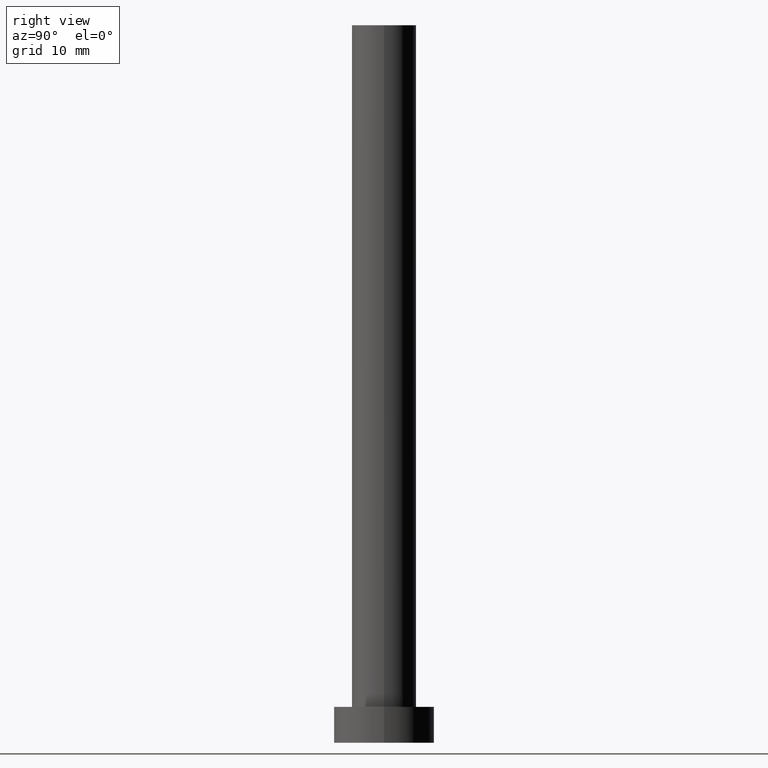
[diagram: clean part render]
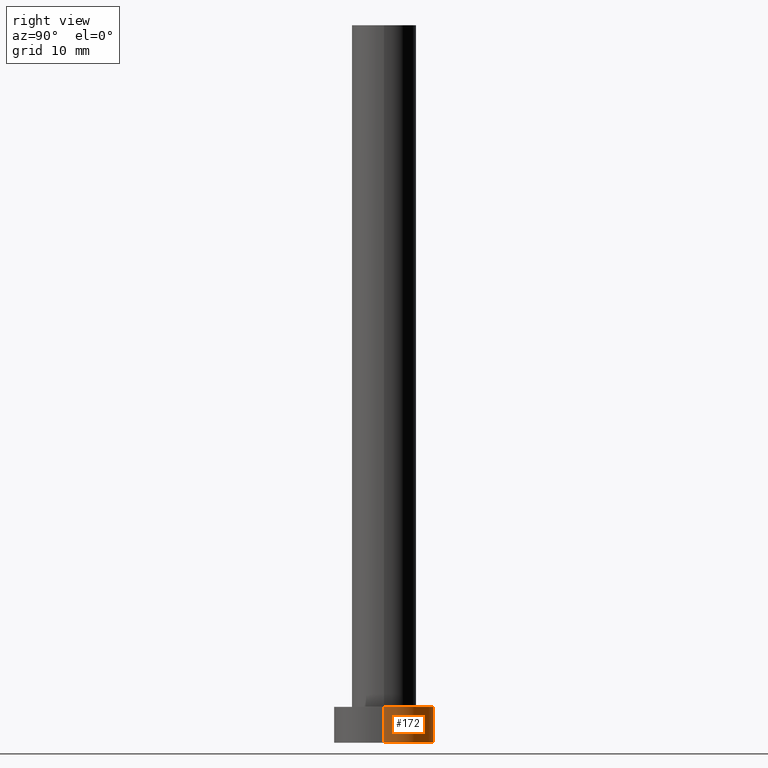
[diagram: same view with one face highlighted and labeled with its STEP entity id]
A machine part, right view. The second image highlights one B-rep face of the part: STEP entity #172.
In plain terms, the highlighted cylindrical surface (partial cylindrical patch) has radius 7 mm, axis along (-0, -0, -1).
Its self-contained STEP definition (entity closure, byte-faithful):
#2 = VERTEX_POINT ( 'NONE', #66 ) ;
#6 = VERTEX_POINT ( 'NONE', #154 ) ;
#9 = CARTESIAN_POINT ( 'NONE',  ( -7.000000000000000000, 0.000000000000000000, 5.000000000000000000 ) ) ;
#15 = CARTESIAN_POINT ( 'NONE',  ( 7.000000000000000000, 8.572527594031473190E-16, 5.000000000000000000 ) ) ;
#25 = DIRECTION ( 'NONE',  ( 0.000000000000000000, 0.000000000000000000, 1.000000000000000000 ) ) ;
#58 = VERTEX_POINT ( 'NONE', #15 ) ;
#63 = LINE ( 'NONE', #208, #144 ) ;
#66 = CARTESIAN_POINT ( 'NONE',  ( 7.000000000000000000, 8.572527594031473190E-16, 0.000000000000000000 ) ) ;
#69 = AXIS2_PLACEMENT_3D ( 'NONE', #91, #25, #127 ) ;
#71 = ORIENTED_EDGE ( 'NONE', *, *, #228, .F. ) ;
#74 = VECTOR ( 'NONE', #111, 1000.000000000000000 ) ;
#77 = EDGE_CURVE ( 'NONE', #58, #2, #63, .T. ) ;
#89 = FACE_OUTER_BOUND ( 'NONE', #135, .T. ) ;
#91 = CARTESIAN_POINT ( 'NONE',  ( 0.000000000000000000, 0.000000000000000000, 5.000000000000000000 ) ) ;
#98 = CIRCLE ( 'NONE', #69, 7.000000000000000000 ) ;
#104 = DIRECTION ( 'NONE',  ( 1.000000000000000000, 0.000000000000000000, 0.000000000000000000 ) ) ;
#106 = EDGE_CURVE ( 'NONE', #183, #6, #209, .T. ) ;
#107 = AXIS2_PLACEMENT_3D ( 'NONE', #202, #186, #110 ) ;
#110 = DIRECTION ( 'NONE',  ( -1.000000000000000000, 0.000000000000000000, 0.000000000000000000 ) ) ;
#111 = DIRECTION ( 'NONE',  ( -0.000000000000000000, -0.000000000000000000, -1.000000000000000000 ) ) ;
#127 = DIRECTION ( 'NONE',  ( 1.000000000000000000, 0.000000000000000000, 0.000000000000000000 ) ) ;
#135 = EDGE_LOOP ( 'NONE', ( #71, #246, #156, #252 ) ) ;
#136 = DIRECTION ( 'NONE',  ( -0.000000000000000000, -0.000000000000000000, -1.000000000000000000 ) ) ;
#144 = VECTOR ( 'NONE', #136, 1000.000000000000000 ) ;
#145 = CIRCLE ( 'NONE', #217, 7.000000000000000000 ) ;
#154 = CARTESIAN_POINT ( 'NONE',  ( -7.000000000000000000, 0.000000000000000000, 0.000000000000000000 ) ) ;
#156 = ORIENTED_EDGE ( 'NONE', *, *, #201, .T. ) ;
#163 = CARTESIAN_POINT ( 'NONE',  ( -7.000000000000000000, 0.000000000000000000, 5.000000000000000000 ) ) ;
#172 = ADVANCED_FACE ( 'NONE', ( #89 ), #255, .T. ) ;
#183 = VERTEX_POINT ( 'NONE', #163 ) ;
#186 = DIRECTION ( 'NONE',  ( -0.000000000000000000, -0.000000000000000000, -1.000000000000000000 ) ) ;
#199 = DIRECTION ( 'NONE',  ( 0.000000000000000000, 0.000000000000000000, 1.000000000000000000 ) ) ;
#201 = EDGE_CURVE ( 'NONE', #2, #6, #145, .T. ) ;
#202 = CARTESIAN_POINT ( 'NONE',  ( 0.000000000000000000, 0.000000000000000000, 5.000000000000000000 ) ) ;
#208 = CARTESIAN_POINT ( 'NONE',  ( 7.000000000000000000, 8.572527594031473190E-16, 5.000000000000000000 ) ) ;
#209 = LINE ( 'NONE', #9, #74 ) ;
#217 = AXIS2_PLACEMENT_3D ( 'NONE', #237, #199, #104 ) ;
#228 = EDGE_CURVE ( 'NONE', #58, #183, #98, .T. ) ;
#237 = CARTESIAN_POINT ( 'NONE',  ( 0.000000000000000000, 0.000000000000000000, 0.000000000000000000 ) ) ;
#246 = ORIENTED_EDGE ( 'NONE', *, *, #77, .T. ) ;
#252 = ORIENTED_EDGE ( 'NONE', *, *, #106, .F. ) ;
#255 = CYLINDRICAL_SURFACE ( 'NONE', #107, 7.000000000000000000 ) ;